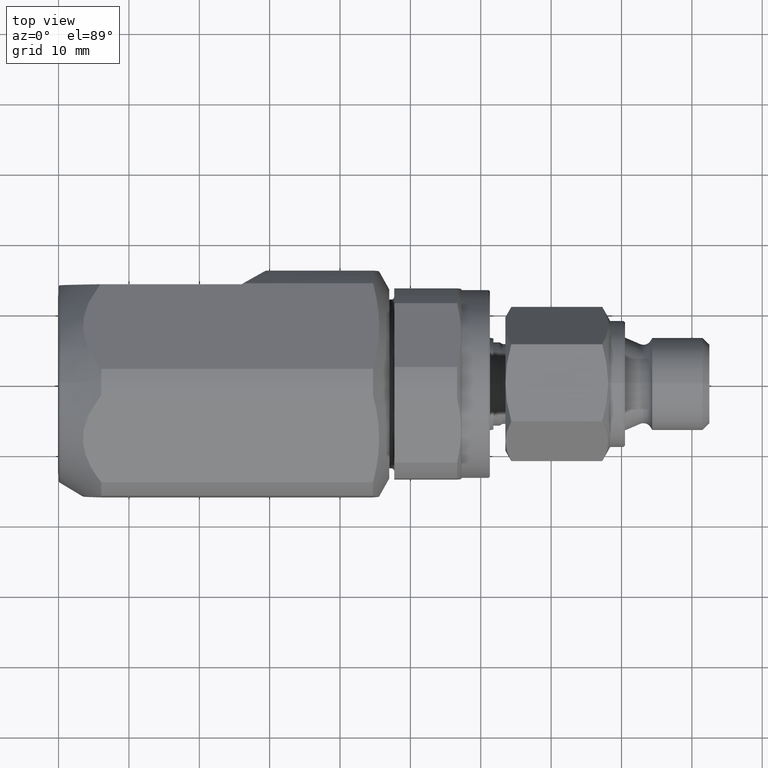
[diagram: clean part render]
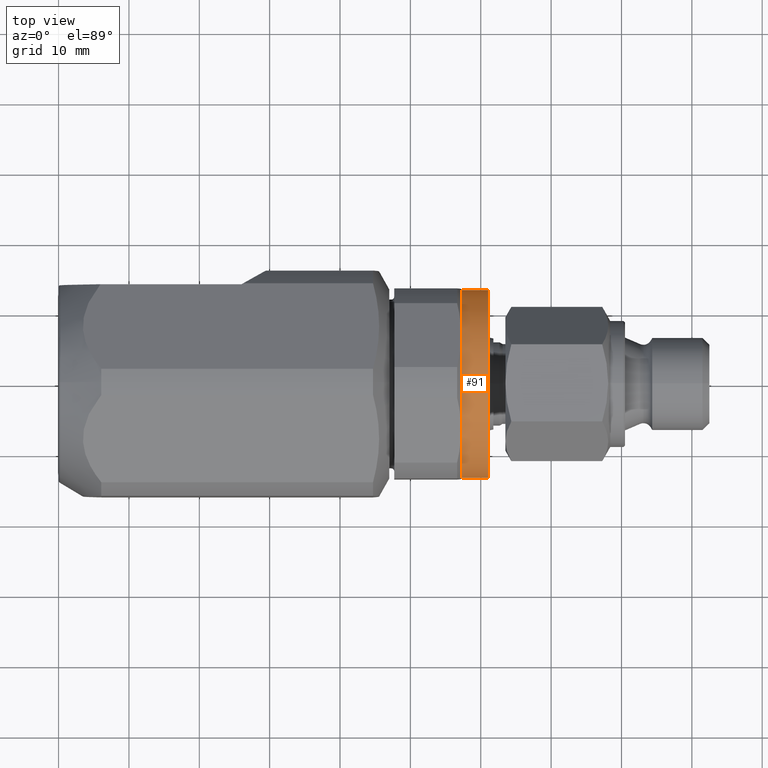
[diagram: same view with one face highlighted and labeled with its STEP entity id]
A machine part, top view. The second image highlights one B-rep face of the part: STEP entity #91.
In plain terms, the highlighted cylindrical surface (partial cylindrical patch) has radius 13.35 mm, axis along (1, -0, -0).
Its self-contained STEP definition (entity closure, byte-faithful):
#91 = ADVANCED_FACE ( 'NONE', ( #1271 ), #1270, .T. ) ;
#92 = EDGE_LOOP ( 'NONE', ( #93, #97, #99, #100 ) ) ;
#93 = ORIENTED_EDGE ( 'NONE', *, *, #94, .T. ) ;
#94 = EDGE_CURVE ( 'NONE', #95, #96, #1269, .T. ) ;
#95 = VERTEX_POINT ( 'NONE', #1294 ) ;
#96 = VERTEX_POINT ( 'NONE', #1293 ) ;
#97 = ORIENTED_EDGE ( 'NONE', *, *, #98, .T. ) ;
#98 = EDGE_CURVE ( 'NONE', #96, #226, #1292, .T. ) ;
#99 = ORIENTED_EDGE ( 'NONE', *, *, #225, .F. ) ;
#100 = ORIENTED_EDGE ( 'NONE', *, *, #101, .F. ) ;
#101 = EDGE_CURVE ( 'NONE', #95, #223, #1288, .T. ) ;
#223 = VERTEX_POINT ( 'NONE', #1604 ) ;
#225 = EDGE_CURVE ( 'NONE', #223, #226, #1601, .T. ) ;
#226 = VERTEX_POINT ( 'NONE', #1649 ) ;
#1267 = CARTESIAN_POINT ( 'NONE',  ( 57.83379999999999700, -7.184888575570520700E-017, -2.763411314402044800E-016 ) ) ;
#1268 = AXIS2_PLACEMENT_3D ( 'NONE', #1267, #1300, #1299 ) ;
#1269 = CIRCLE ( 'NONE', #1298, 13.35000000000000100 ) ;
#1270 = CYLINDRICAL_SURFACE ( 'NONE', #1268, 13.35000000000000100 ) ;
#1271 = FACE_OUTER_BOUND ( 'NONE', #92, .T. ) ;
#1288 = LINE ( 'NONE', #1342, #1341 ) ;
#1289 = DIRECTION ( 'NONE',  ( 1.000000000000000000, -1.283015817066064000E-017, -4.934663061432619400E-017 ) ) ;
#1290 = VECTOR ( 'NONE', #1289, 1000.000000000000000 ) ;
#1291 = CARTESIAN_POINT ( 'NONE',  ( 57.83379999999999700, -13.35000000000000100, -1.272184116438705300E-014 ) ) ;
#1292 = LINE ( 'NONE', #1291, #1290 ) ;
#1293 = CARTESIAN_POINT ( 'NONE',  ( 57.29999999999999700, -13.34999999999995300, -1.433040340982680300E-014 ) ) ;
#1294 = CARTESIAN_POINT ( 'NONE',  ( 57.29999999999999700, 13.34999999999995300, 1.546530708665193900E-014 ) ) ;
#1295 = DIRECTION ( 'NONE',  ( 0.0000000000000000000, 1.000000000000000000, 1.054711873393899900E-015 ) ) ;
#1296 = DIRECTION ( 'NONE',  ( 1.000000000000000000, -1.283015817066064000E-017, -4.934663061432619400E-017 ) ) ;
#1297 = CARTESIAN_POINT ( 'NONE',  ( 57.29999999999999700, -6.500014732420860300E-017, -2.499999000182875100E-016 ) ) ;
#1298 = AXIS2_PLACEMENT_3D ( 'NONE', #1297, #1296, #1295 ) ;
#1299 = DIRECTION ( 'NONE',  ( 0.0000000000000000000, 1.000000000000000000, 1.054711873393899900E-015 ) ) ;
#1300 = DIRECTION ( 'NONE',  ( 1.000000000000000000, -1.283015817066064000E-017, -4.934663061432619400E-017 ) ) ;
#1340 = DIRECTION ( 'NONE',  ( 1.000000000000000000, -1.283015817066064000E-017, -4.934663061432619400E-017 ) ) ;
#1341 = VECTOR ( 'NONE', #1340, 1000.000000000000000 ) ;
#1342 = CARTESIAN_POINT ( 'NONE',  ( 57.83379999999999700, 13.35000000000000100, 1.380406237836836000E-014 ) ) ;
#1601 = CIRCLE ( 'NONE', #1653, 13.35000000000000100 ) ;
#1604 = CARTESIAN_POINT ( 'NONE',  ( 61.10000000000000100, 13.35000000000000100, 1.364288641345585100E-014 ) ) ;
#1649 = CARTESIAN_POINT ( 'NONE',  ( 61.10000000000000100, -13.35000000000000100, -1.278925853113234300E-014 ) ) ;
#1650 = DIRECTION ( 'NONE',  ( 0.0000000000000000000, 1.000000000000000000, 1.054711873393899900E-015 ) ) ;
#1651 = DIRECTION ( 'NONE',  ( 1.000000000000000000, -1.283015817066064000E-017, -4.934663061432619400E-017 ) ) ;
#1652 = CARTESIAN_POINT ( 'NONE',  ( 61.10000000000000100, -1.137547483727168000E-016, -4.375170963527145100E-016 ) ) ;
#1653 = AXIS2_PLACEMENT_3D ( 'NONE', #1652, #1651, #1650 ) ;